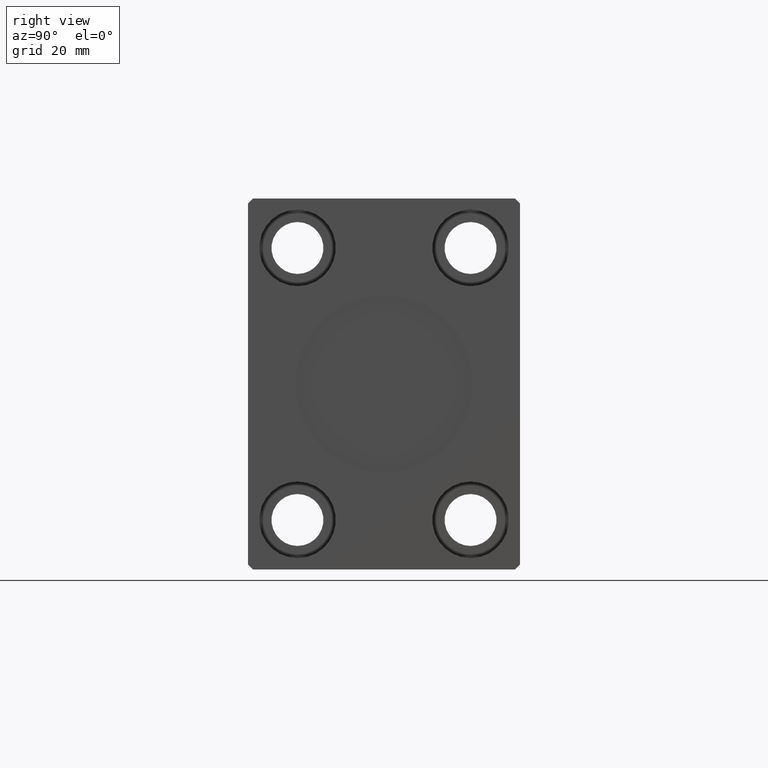
[diagram: clean part render]
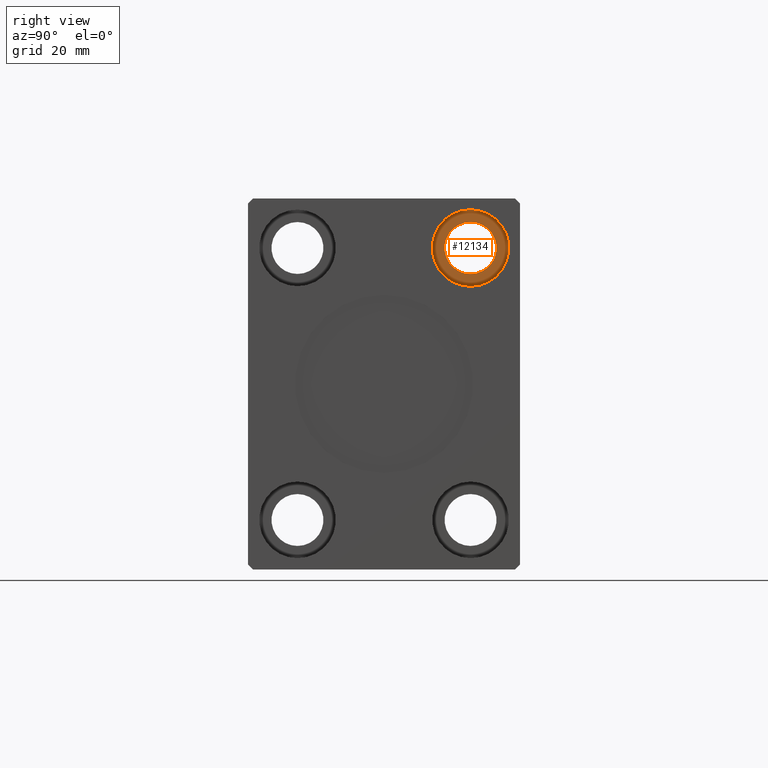
[diagram: same view with one face highlighted and labeled with its STEP entity id]
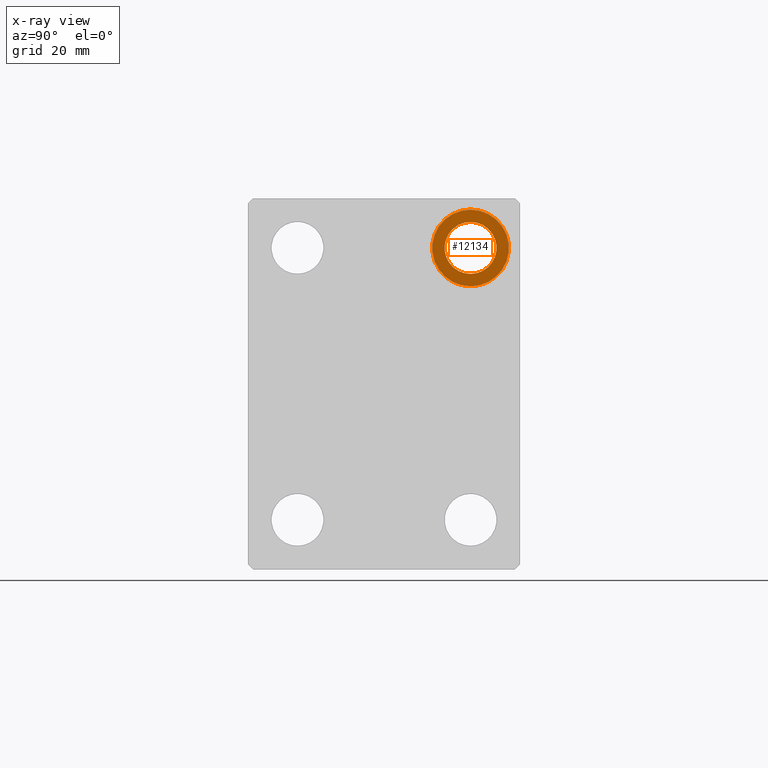
[diagram: x-ray of the same camera — body ghosted, the highlighted face saturated]
A machine part, right view. The second image highlights one B-rep face of the part: STEP entity #12134.
The next image is the same camera in x-ray: the body ghosted, the highlighted face saturated — about 0% of this face is hidden behind the body in this view.
In plain terms, the highlighted planar face has unit normal (-1, 0, 0).
Its self-contained STEP definition (entity closure, byte-faithful):
#2676 = DIRECTION ( 'NONE',  ( 1.000000000000000000, -0.000000000000000000, -0.000000000000000000 ) ) ;
#4562 = VERTEX_POINT ( 'NONE', #19302 ) ;
#4661 = VERTEX_POINT ( 'NONE', #33498 ) ;
#4837 = CIRCLE ( 'NONE', #26153, 7.750000000000003553 ) ;
#5134 = DIRECTION ( 'NONE',  ( 0.000000000000000000, 0.000000000000000000, -1.000000000000000000 ) ) ;
#9337 = DIRECTION ( 'NONE',  ( -1.000000000000000000, 0.000000000000000000, 0.000000000000000000 ) ) ;
#9943 = EDGE_CURVE ( 'NONE', #4661, #10942, #32949, .T. ) ;
#10940 = CARTESIAN_POINT ( 'NONE',  ( 104.6700000000000017, 17.50000000000000000, 19.74999999999999645 ) ) ;
#10942 = VERTEX_POINT ( 'NONE', #33316 ) ;
#12134 = ADVANCED_FACE ( 'NONE', ( #22114, #34630 ), #35261, .F. ) ;
#12419 = DIRECTION ( 'NONE',  ( -1.000000000000000000, 0.000000000000000000, 0.000000000000000000 ) ) ;
#12999 = CARTESIAN_POINT ( 'NONE',  ( 104.6700000000000017, 17.50000000000000000, 27.50000000000000000 ) ) ;
#14394 = DIRECTION ( 'NONE',  ( 0.000000000000000000, 0.000000000000000000, 1.000000000000000000 ) ) ;
#18819 = CARTESIAN_POINT ( 'NONE',  ( 104.6700000000000017, 17.50000000000000000, 27.50000000000000000 ) ) ;
#19302 = CARTESIAN_POINT ( 'NONE',  ( 104.6700000000000017, 17.50000000000000000, 35.25000000000000000 ) ) ;
#21300 = ORIENTED_EDGE ( 'NONE', *, *, #9943, .T. ) ;
#22114 = FACE_BOUND ( 'NONE', #39470, .T. ) ;
#22466 = DIRECTION ( 'NONE',  ( 0.000000000000000000, 0.000000000000000000, 1.000000000000000000 ) ) ;
#22692 = DIRECTION ( 'NONE',  ( 0.000000000000000000, 0.000000000000000000, -1.000000000000000000 ) ) ;
#23087 = EDGE_CURVE ( 'NONE', #4562, #23937, #39338, .T. ) ;
#23937 = VERTEX_POINT ( 'NONE', #10940 ) ;
#24481 = ORIENTED_EDGE ( 'NONE', *, *, #30517, .T. ) ;
#25608 = ORIENTED_EDGE ( 'NONE', *, *, #32519, .T. ) ;
#26153 = AXIS2_PLACEMENT_3D ( 'NONE', #27591, #27807, #38339 ) ;
#27591 = CARTESIAN_POINT ( 'NONE',  ( 104.6700000000000017, 17.50000000000000000, 27.50000000000000000 ) ) ;
#27807 = DIRECTION ( 'NONE',  ( 1.000000000000000000, -0.000000000000000000, -0.000000000000000000 ) ) ;
#27967 = CARTESIAN_POINT ( 'NONE',  ( 104.6700000000000017, 17.50000000000000000, 27.50000000000000000 ) ) ;
#29319 = EDGE_LOOP ( 'NONE', ( #25608, #42510 ) ) ;
#29560 = AXIS2_PLACEMENT_3D ( 'NONE', #41947, #12419, #5134 ) ;
#30517 = EDGE_CURVE ( 'NONE', #10942, #4661, #38485, .T. ) ;
#32519 = EDGE_CURVE ( 'NONE', #23937, #4562, #4837, .T. ) ;
#32949 = CIRCLE ( 'NONE', #37060, 5.250000000000000888 ) ;
#33316 = CARTESIAN_POINT ( 'NONE',  ( 104.6700000000000017, 17.50000000000000000, 22.25000000000000000 ) ) ;
#33498 = CARTESIAN_POINT ( 'NONE',  ( 104.6700000000000017, 17.50000000000000000, 32.75000000000000000 ) ) ;
#34515 = AXIS2_PLACEMENT_3D ( 'NONE', #12999, #2676, #22692 ) ;
#34630 = FACE_OUTER_BOUND ( 'NONE', #29319, .T. ) ;
#35261 = PLANE ( 'NONE',  #29560 ) ;
#37060 = AXIS2_PLACEMENT_3D ( 'NONE', #27967, #37884, #14394 ) ;
#37884 = DIRECTION ( 'NONE',  ( -1.000000000000000000, 0.000000000000000000, 0.000000000000000000 ) ) ;
#38339 = DIRECTION ( 'NONE',  ( 0.000000000000000000, 0.000000000000000000, -1.000000000000000000 ) ) ;
#38485 = CIRCLE ( 'NONE', #39201, 5.250000000000000888 ) ;
#39201 = AXIS2_PLACEMENT_3D ( 'NONE', #18819, #9337, #22466 ) ;
#39338 = CIRCLE ( 'NONE', #34515, 7.750000000000003553 ) ;
#39470 = EDGE_LOOP ( 'NONE', ( #21300, #24481 ) ) ;
#41947 = CARTESIAN_POINT ( 'NONE',  ( 104.6700000000000017, 17.50000000000000000, 27.50000000000000000 ) ) ;
#42510 = ORIENTED_EDGE ( 'NONE', *, *, #23087, .T. ) ;